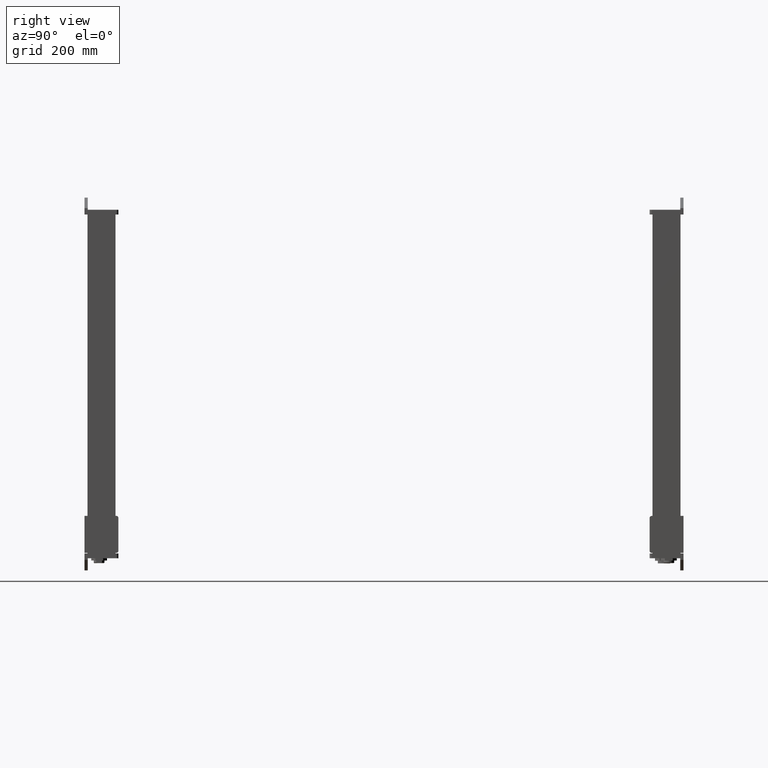
[diagram: clean part render]
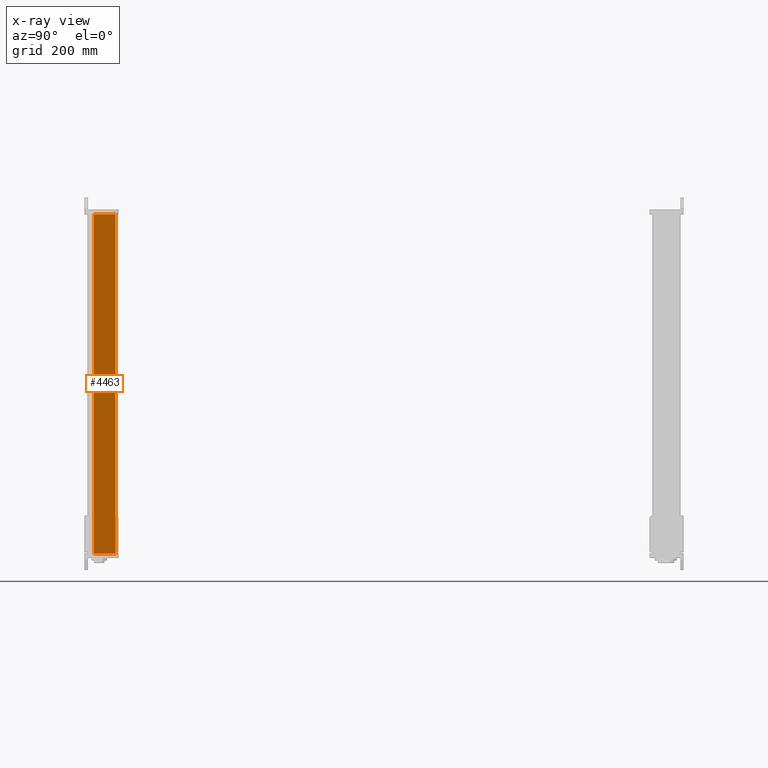
[diagram: x-ray — body ghosted, one internal face saturated and labeled with its STEP entity id]
A machine part, right view, then the same camera in x-ray: the body is ghosted and one INTERNAL B-rep face — a face not visible from any outside direction — is saturated and labeled: STEP entity #4463.
In plain terms, the highlighted planar face has unit normal (-1, 0, 0).
Its self-contained STEP definition (entity closure, byte-faithful):
#4411=CARTESIAN_POINT('Vertex',(48.,52.,0.)) ;
#4414=CARTESIAN_POINT('Line Origine',(48.,52.,315.5)) ;
#4418=CARTESIAN_POINT('Vertex',(48.,52.,631.)) ;
#4433=CARTESIAN_POINT('Axis2P3D Location',(48.,52.,0.)) ;
#4438=CARTESIAN_POINT('Line Origine',(48.,32.,0.)) ;
#4442=CARTESIAN_POINT('Vertex',(48.,12.,0.)) ;
#4445=CARTESIAN_POINT('Line Origine',(48.,12.,315.5)) ;
#4449=CARTESIAN_POINT('Vertex',(48.,12.,631.)) ;
#4452=CARTESIAN_POINT('Line Origine',(48.,32.,631.)) ;
#4415=DIRECTION('Vector Direction',(0.,0.,1.)) ;
#4434=DIRECTION('Axis2P3D Direction',(-1.,0.,0.)) ;
#4435=DIRECTION('Axis2P3D XDirection',(0.,-1.,0.)) ;
#4439=DIRECTION('Vector Direction',(0.,-1.,0.)) ;
#4446=DIRECTION('Vector Direction',(0.,0.,1.)) ;
#4453=DIRECTION('Vector Direction',(0.,-1.,0.)) ;
#4436=AXIS2_PLACEMENT_3D('Plane Axis2P3D',#4433,#4434,#4435) ;
#4458=ORIENTED_EDGE('',*,*,#4420,.F.) ;
#4459=ORIENTED_EDGE('',*,*,#4444,.T.) ;
#4460=ORIENTED_EDGE('',*,*,#4451,.T.) ;
#4461=ORIENTED_EDGE('',*,*,#4456,.F.) ;
#4416=VECTOR('Line Direction',#4415,1.) ;
#4440=VECTOR('Line Direction',#4439,1.) ;
#4447=VECTOR('Line Direction',#4446,1.) ;
#4454=VECTOR('Line Direction',#4453,1.) ;
#4463=ADVANCED_FACE('PartBody',(#4462),#4437,.T.) ;
#4420=EDGE_CURVE('',#4412,#4419,#4417,.T.) ;
#4444=EDGE_CURVE('',#4412,#4443,#4441,.T.) ;
#4451=EDGE_CURVE('',#4443,#4450,#4448,.T.) ;
#4456=EDGE_CURVE('',#4419,#4450,#4455,.T.) ;
#4457=EDGE_LOOP('',(#4458,#4459,#4460,#4461)) ;
#4462=FACE_OUTER_BOUND('',#4457,.T.) ;
#4417=LINE('Line',#4414,#4416) ;
#4441=LINE('Line',#4438,#4440) ;
#4448=LINE('Line',#4445,#4447) ;
#4455=LINE('Line',#4452,#4454) ;
#4437=PLANE('Plane',#4436) ;
#4412=VERTEX_POINT('',#4411) ;
#4419=VERTEX_POINT('',#4418) ;
#4443=VERTEX_POINT('',#4442) ;
#4450=VERTEX_POINT('',#4449) ;